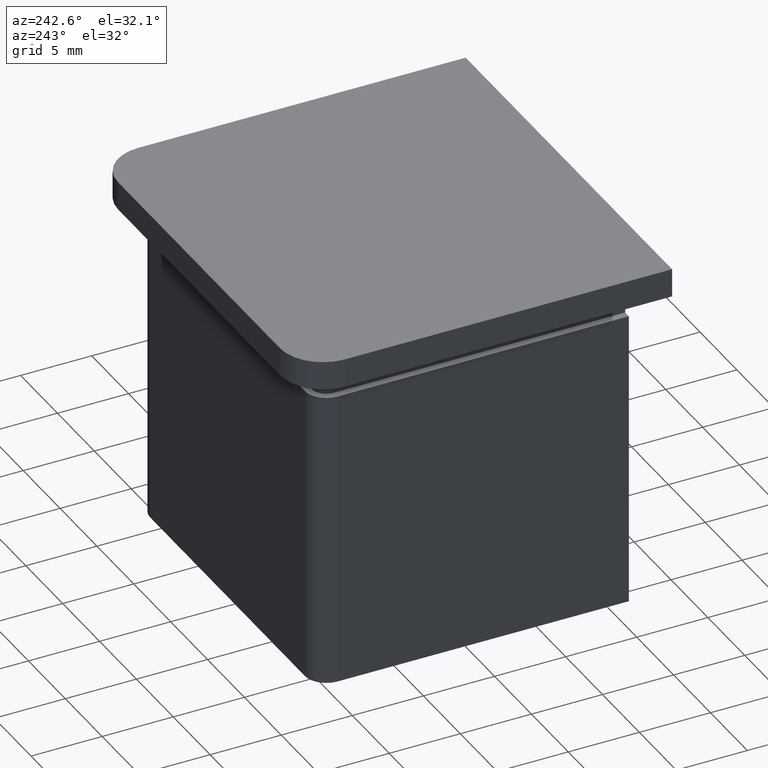
[diagram: clean part render]
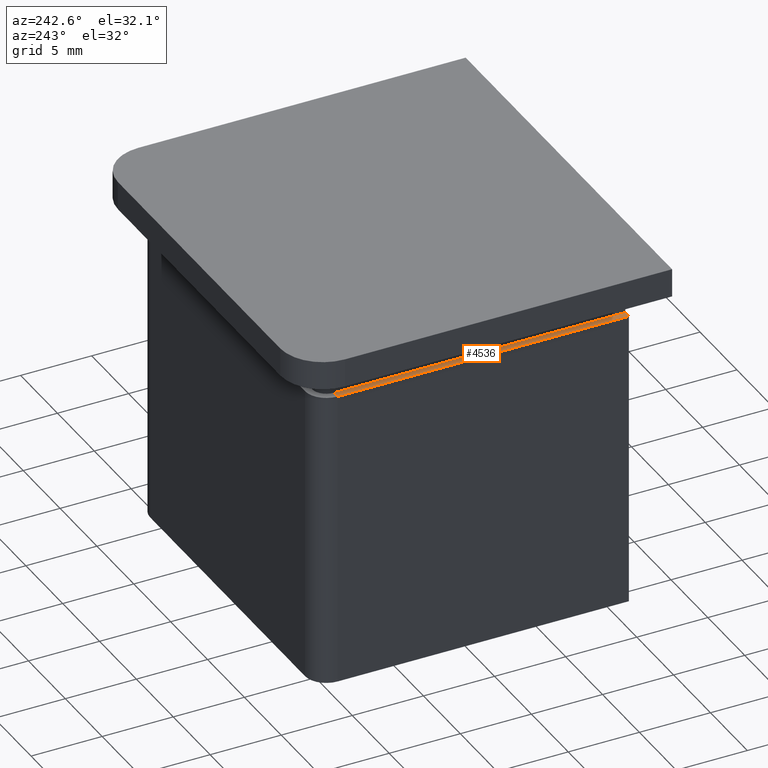
[diagram: same view with one face highlighted and labeled with its STEP entity id]
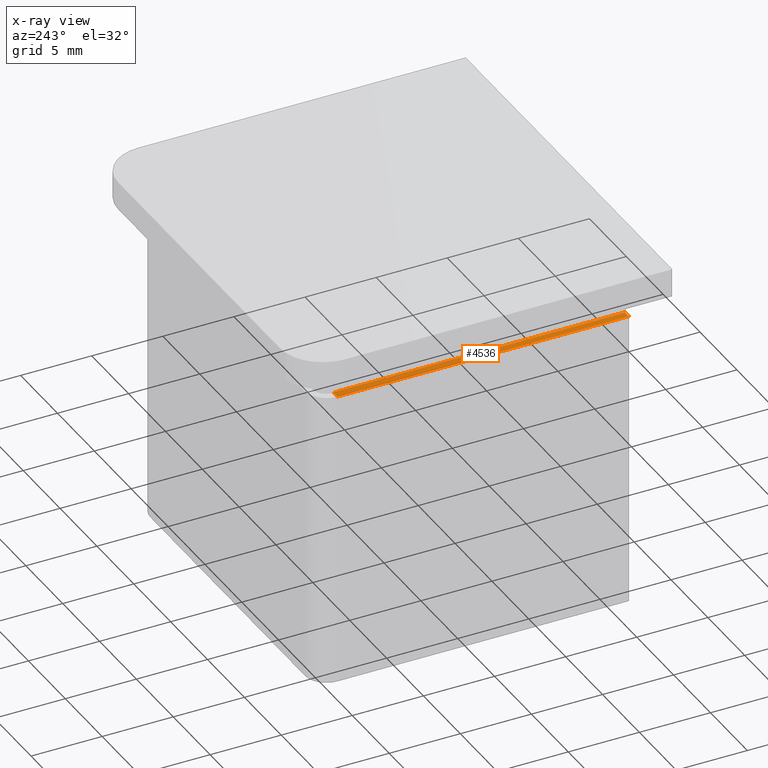
[diagram: x-ray of the same camera — body ghosted, the highlighted face saturated]
A machine part, auxiliary view. The second image highlights one B-rep face of the part: STEP entity #4536.
The next image is the same camera in x-ray: the body ghosted, the highlighted face saturated — about 0% of this face is hidden behind the body in this view.
In plain terms, the highlighted planar face has unit normal (-0, 0, 1).
Its self-contained STEP definition (entity closure, byte-faithful):
#54 = LINE ( 'NONE', #12666, #12489 ) ;
#1145 = PLANE ( 'NONE',  #3521 ) ;
#1650 = VECTOR ( 'NONE', #15489, 1000.000000000000000 ) ;
#1730 = CARTESIAN_POINT ( 'NONE',  ( -13.50000000000000178, -10.99999999999999645, -2.000000000000000000 ) ) ;
#1810 = VERTEX_POINT ( 'NONE', #10259 ) ;
#2135 = CARTESIAN_POINT ( 'NONE',  ( -12.00000000000000000, 9.499999999999991118, -2.000000000000001776 ) ) ;
#3077 = LINE ( 'NONE', #6188, #14436 ) ;
#3331 = EDGE_CURVE ( 'NONE', #11529, #5042, #13035, .T. ) ;
#3521 = AXIS2_PLACEMENT_3D ( 'NONE', #9474, #17675, #12173 ) ;
#4536 = ADVANCED_FACE ( 'NONE', ( #11708 ), #1145, .T. ) ;
#5042 = VERTEX_POINT ( 'NONE', #5089 ) ;
#5089 = CARTESIAN_POINT ( 'NONE',  ( -12.00000000000000178, -10.99999999999999822, -2.000000000000000000 ) ) ;
#6188 = CARTESIAN_POINT ( 'NONE',  ( -12.00000000000000000, 9.499999999999989342, -2.000000000000001776 ) ) ;
#6236 = VECTOR ( 'NONE', #9585, 1000.000000000000000 ) ;
#6672 = CARTESIAN_POINT ( 'NONE',  ( -13.49999999999999822, 9.499999999999991118, -2.000000000000000000 ) ) ;
#7098 = EDGE_LOOP ( 'NONE', ( #13293, #8774, #15582, #16070 ) ) ;
#7722 = LINE ( 'NONE', #6672, #6236 ) ;
#8279 = EDGE_CURVE ( 'NONE', #12961, #5042, #3077, .T. ) ;
#8487 = DIRECTION ( 'NONE',  ( 1.416100796715762096E-16, 1.000000000000000000, 0.000000000000000000 ) ) ;
#8774 = ORIENTED_EDGE ( 'NONE', *, *, #3331, .F. ) ;
#9000 = EDGE_CURVE ( 'NONE', #11529, #1810, #54, .T. ) ;
#9474 = CARTESIAN_POINT ( 'NONE',  ( -13.50000000000000533, -14.99999999999998757, -2.000000000000000000 ) ) ;
#9585 = DIRECTION ( 'NONE',  ( 1.000000000000000000, -8.673617379884035472E-16, 0.000000000000000000 ) ) ;
#10259 = CARTESIAN_POINT ( 'NONE',  ( -11.50000000000000178, 9.499999999999991118, -2.000000000000000000 ) ) ;
#11529 = VERTEX_POINT ( 'NONE', #14196 ) ;
#11708 = FACE_OUTER_BOUND ( 'NONE', #7098, .T. ) ;
#11737 = DIRECTION ( 'NONE',  ( -1.692413147294446709E-16, -1.000000000000000000, 0.000000000000000000 ) ) ;
#12173 = DIRECTION ( 'NONE',  ( 1.000000000000000000, 0.000000000000000000, 0.000000000000000000 ) ) ;
#12489 = VECTOR ( 'NONE', #8487, 1000.000000000000000 ) ;
#12666 = CARTESIAN_POINT ( 'NONE',  ( -11.50000000000000533, -14.99999999999998934, -2.000000000000000000 ) ) ;
#12961 = VERTEX_POINT ( 'NONE', #2135 ) ;
#13035 = LINE ( 'NONE', #1730, #1650 ) ;
#13293 = ORIENTED_EDGE ( 'NONE', *, *, #8279, .T. ) ;
#14196 = CARTESIAN_POINT ( 'NONE',  ( -11.50000000000000178, -10.99999999999999822, -2.000000000000000000 ) ) ;
#14436 = VECTOR ( 'NONE', #11737, 1000.000000000000000 ) ;
#15489 = DIRECTION ( 'NONE',  ( -1.000000000000000000, 8.673617379884035472E-16, -0.000000000000000000 ) ) ;
#15582 = ORIENTED_EDGE ( 'NONE', *, *, #9000, .T. ) ;
#15635 = EDGE_CURVE ( 'NONE', #12961, #1810, #7722, .T. ) ;
#16070 = ORIENTED_EDGE ( 'NONE', *, *, #15635, .F. ) ;
#17675 = DIRECTION ( 'NONE',  ( -0.000000000000000000, 0.000000000000000000, 1.000000000000000000 ) ) ;